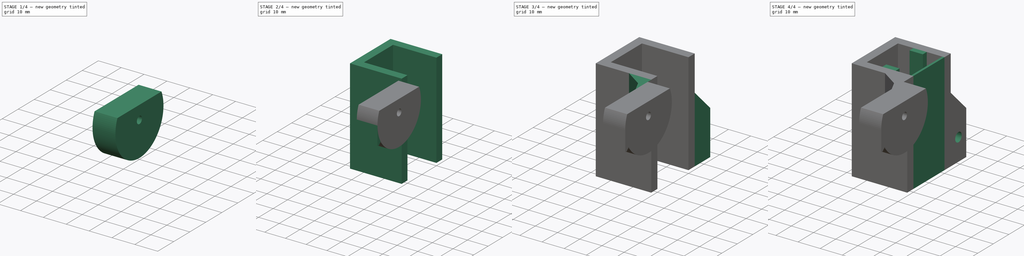
[diagram: build sequence overview — one tinted view per stage of 4, left to right]
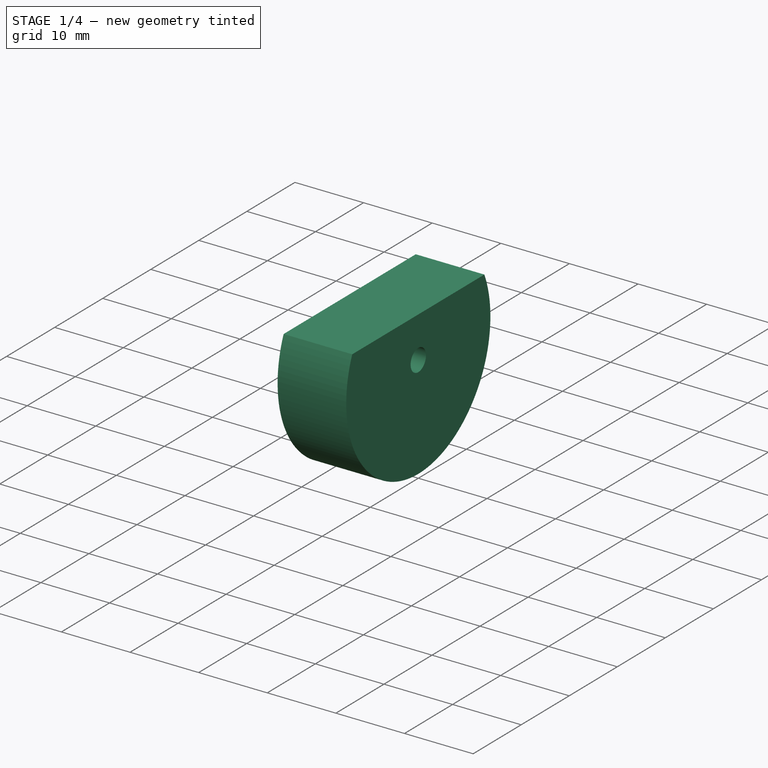
[diagram: stage 1 of 4 — iso view after this stage's code; geometry added in this stage tinted green]
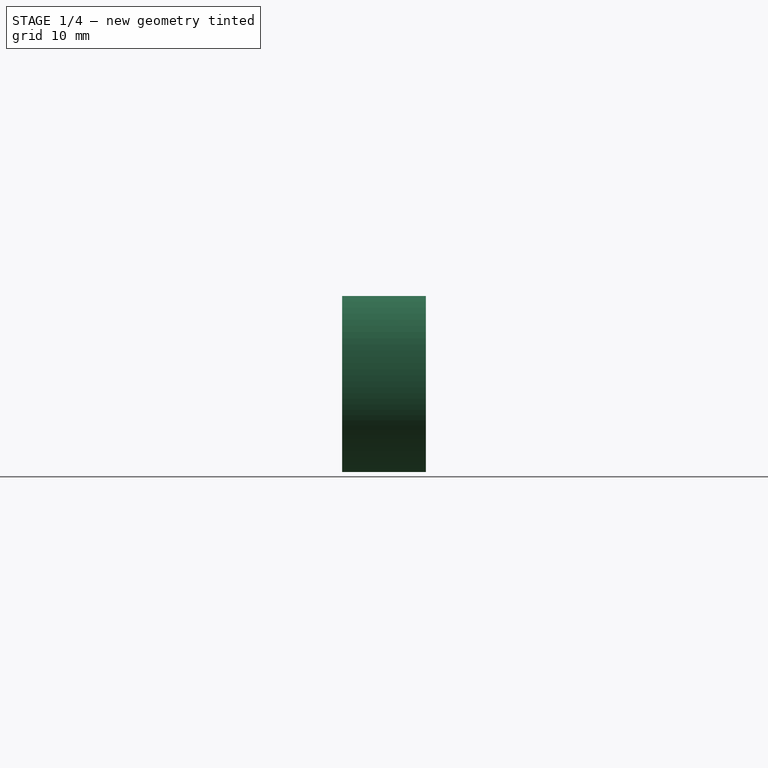
[diagram: stage 1 of 4 — front view after this stage's code; geometry added in this stage tinted green]
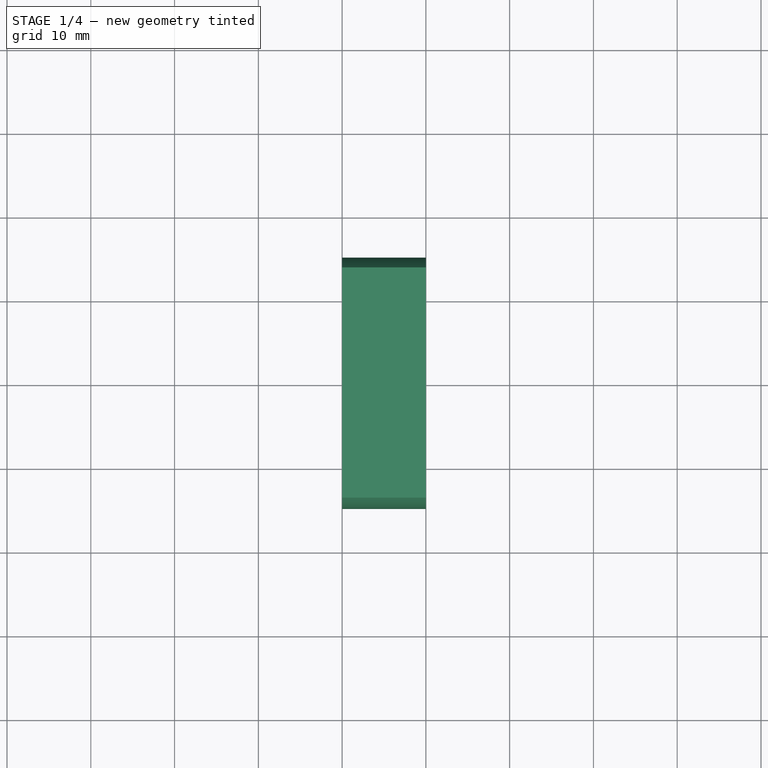
[diagram: stage 1 of 4 — top view after this stage's code; geometry added in this stage tinted green]
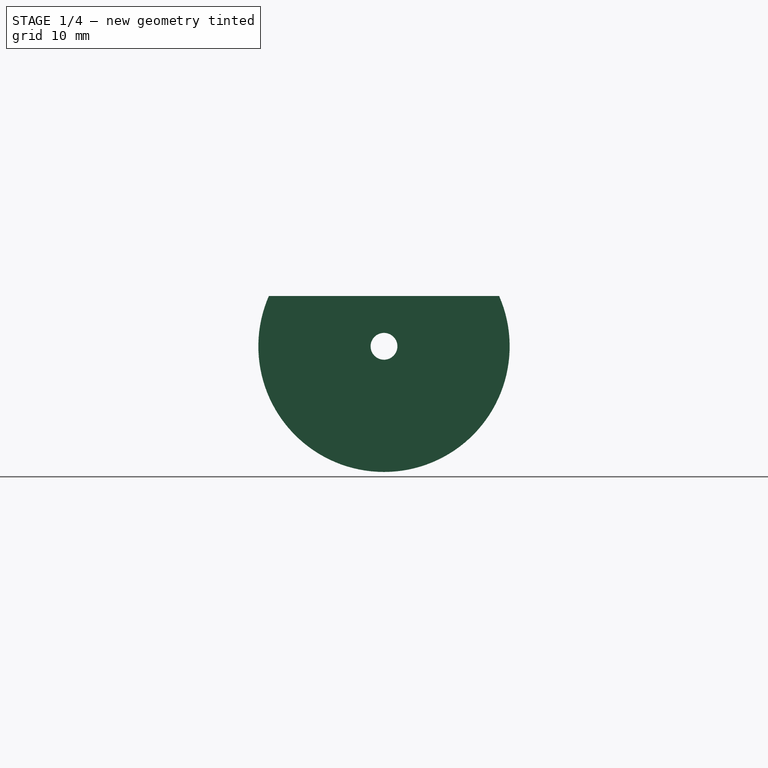
[diagram: stage 1 of 4 — right view after this stage's code; geometry added in this stage tinted green]
FCSTD DOCUMENT  (FreeCAD 0.14R3692 (Git))
Label: hinge-outer
License: CC-BY 3.0
LicenseURL: http://creativecommons.org/licenses/by/3.0/
objects: Sketcher::SketchObject×9, PartDesign::Pocket×5, PartDesign::Pad×4, Part::Feature×4, Part::Box×1, Part::Thickness×1, Part::Cylinder×1, PartDesign::Draft×1, Part::MultiFuse×1, App::DocumentObjectGroup×1
note: 36 computed .brp shape members not serialized (recipe doc carries the construction recipe); baked Part::Feature solids carry a one-line shape summary decoded from their .brp

FEATURE [Part::Cylinder] Cylinder  label="hinge-head-cylinder"
  Angle = 360
  Height = 10
  Placement = pos=(20,-20,-6) rot=(0,1,0;1.5708rad)
  Radius = 15
FEATURE [Sketcher::SketchObject] Sketch  label="hinge-head-cutout-sketch"
  Placement = pos=(20,-20,-6) rot=(0.707107,0,-0.707107;3.14159rad)
  Support = -> Cylinder [Face3]
  sketch-geometry (4):
    g0: LineSegment StartX=-6 StartY=15 StartZ=0 EndX=-16 EndY=15 EndZ=0
    g1: LineSegment StartX=-16 StartY=15 StartZ=0 EndX=-16 EndY=-15 EndZ=0
    g2: LineSegment StartX=-16 StartY=-15 StartZ=0 EndX=-6 EndY=-15 EndZ=0
    g3: LineSegment StartX=-6 StartY=-15 StartZ=0 EndX=-6 EndY=15 EndZ=0
  constraints (12):
    c: Coincident(g0,g1)
    c: Coincident(g1,g2)
    c: Coincident(g2,g3)
    c: Coincident(g3,g0)
    c: Horizontal(g0)
    c: Horizontal(g2)
    c: Vertical(g1)
    c: Vertical(g3)
    c: DistanceY(g3) = 30
    c: DistanceX(g2) = 10
    c: DistanceX(g-1,g2) = -6
    c: DistanceY(g-1,g2) = -15
FEATURE [PartDesign::Pocket] Pocket  label="hinge-head-cutout-pocket"
  Length = 10
  Placement = pos=(20,-20,-6) rot=(0,1,0;1.5708rad)
  Sketch = -> Sketch
  Type = 0
FEATURE [Sketcher::SketchObject] Sketch001  label="hinge-nut-sketch"
  Placement = pos=(20,-20,-6) rot=(0.707107,0,-0.707107;3.14159rad)
  Support = -> Pocket [Face5]
  sketch-geometry (7):
    g0: LineSegment StartX=-2.94449 StartY=-1.7 StartZ=0 EndX=-2.94449 EndY=1.7 EndZ=0
    g1: LineSegment StartX=-2.94449 StartY=1.7 StartZ=0 EndX=0 EndY=3.4 EndZ=0
    g2: LineSegment StartX=0 StartY=3.4 StartZ=0 EndX=2.94449 EndY=1.7 EndZ=0
    g3: LineSegment StartX=2.94449 StartY=1.7 StartZ=0 EndX=2.94449 EndY=-1.7 EndZ=0
    g4: LineSegment StartX=2.94449 StartY=-1.7 StartZ=0 EndX=0 EndY=-3.4 EndZ=0
    g5: LineSegment StartX=0 StartY=-3.4 StartZ=0 EndX=-2.94449 EndY=-1.7 EndZ=0
    g6: Circle [constr] CenterX=0 CenterY=0 CenterZ=0 NormalX=0 NormalY=0 NormalZ=1 Radius=3.4
  constraints (20):
    c: Coincident(g0,g1)
    c: Coincident(g1,g2)
    c: Coincident(g2,g3)
    c: Coincident(g3,g4)
    c: Coincident(g4,g5)
    c: Coincident(g5,g0)
    c: Coincident(g6,g-1)
    c: Radius(g6) = 3.4
    c: PointOnObject(g0,g6)
    c: PointOnObject(g1,g6)
    c: PointOnObject(g2,g6)
    c: PointOnObject(g3,g6)
    c: PointOnObject(g4,g6)
    c: PointOnObject(g0,g6)
    c: Equal(g0,g1)
    c: Equal(g1,g2)
    c: Equal(g2,g3)
    c: Equal(g3,g4)
    c: Equal(g4,g5)
    c: PointOnObject(g1,g-2)
FEATURE [PartDesign::Pocket] Pocket001  label="hinge-nut-pocket"
  Length = 6
  Placement = pos=(20,-20,-6) rot=(0,1,0;1.5708rad)
  Sketch = -> Sketch001
  Type = 0
FEATURE [Sketcher::SketchObject] Sketch002  label="hinge-screw-hole-sketch"
  Placement = pos=(26,-20,-6) rot=(0.707107,0,-0.707107;3.14159rad)
  Support = -> Pocket001 [Face12]
  sketch-geometry (1):
    g0: Circle CenterX=0 CenterY=0 CenterZ=0 NormalX=0 NormalY=0 NormalZ=1 Radius=1.6
  constraints (2):
    c: Radius(g0) = 1.6
    c: Coincident(g0,g-1)
FEATURE [PartDesign::Pocket] Pocket002  label="hinge-screw-hole-pocket"
  Length = 4
  Placement = pos=(20,-20,-6) rot=(0,1,0;1.5708rad)
  Sketch = -> Sketch002
  Type = 0
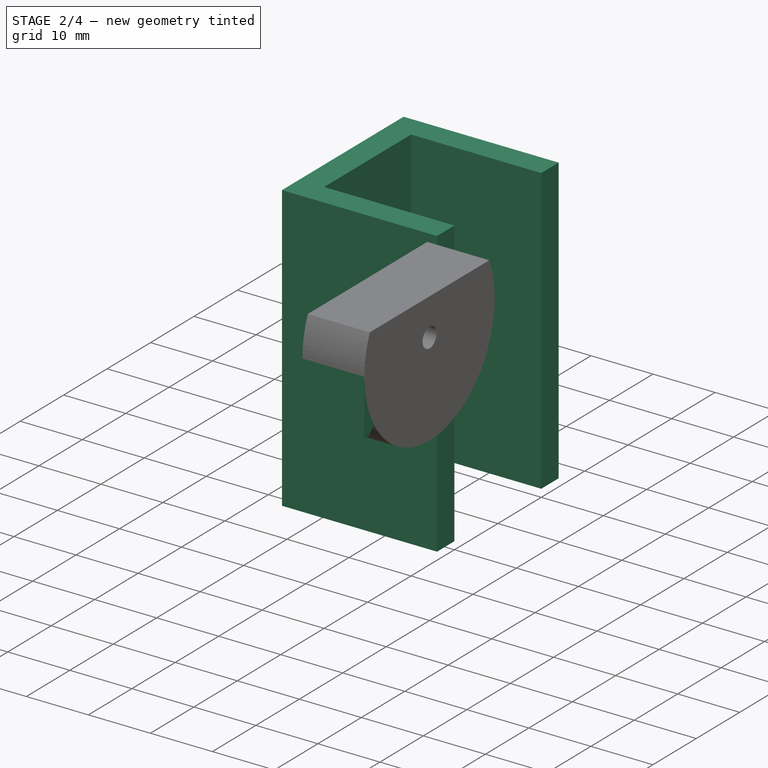
[diagram: stage 2 of 4 — iso view after this stage's code; geometry added in this stage tinted green]
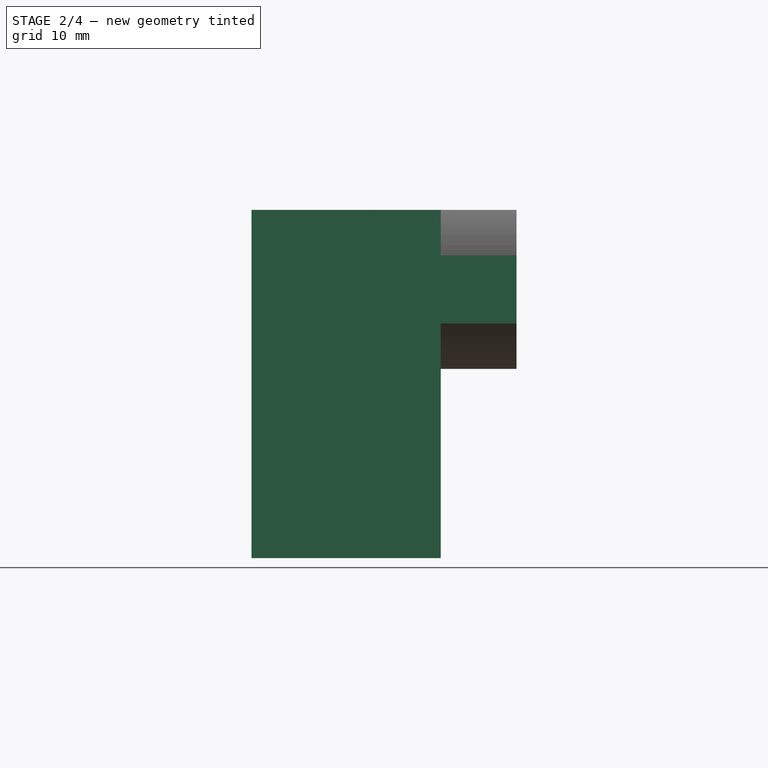
[diagram: stage 2 of 4 — front view after this stage's code; geometry added in this stage tinted green]
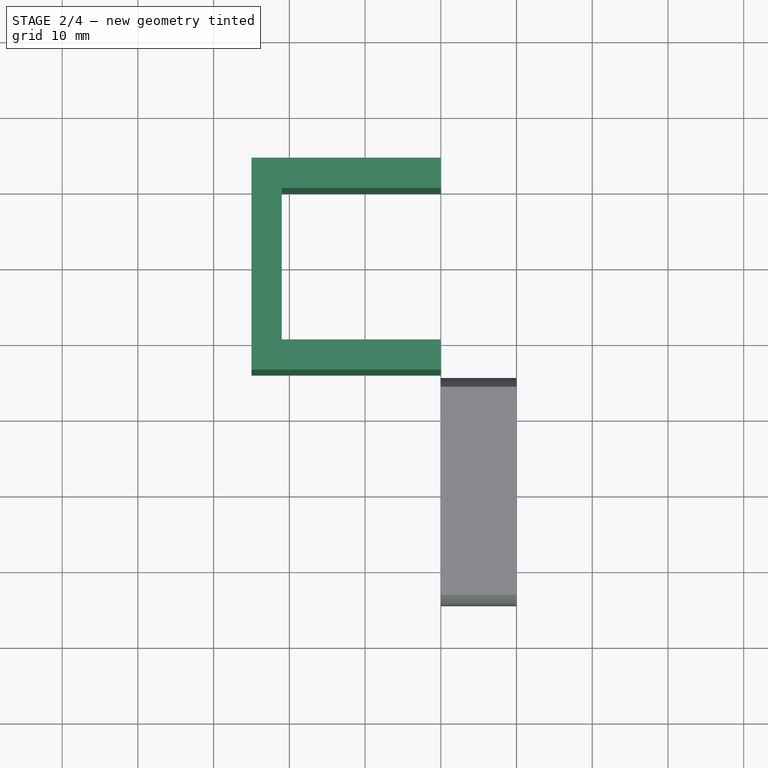
[diagram: stage 2 of 4 — top view after this stage's code; geometry added in this stage tinted green]
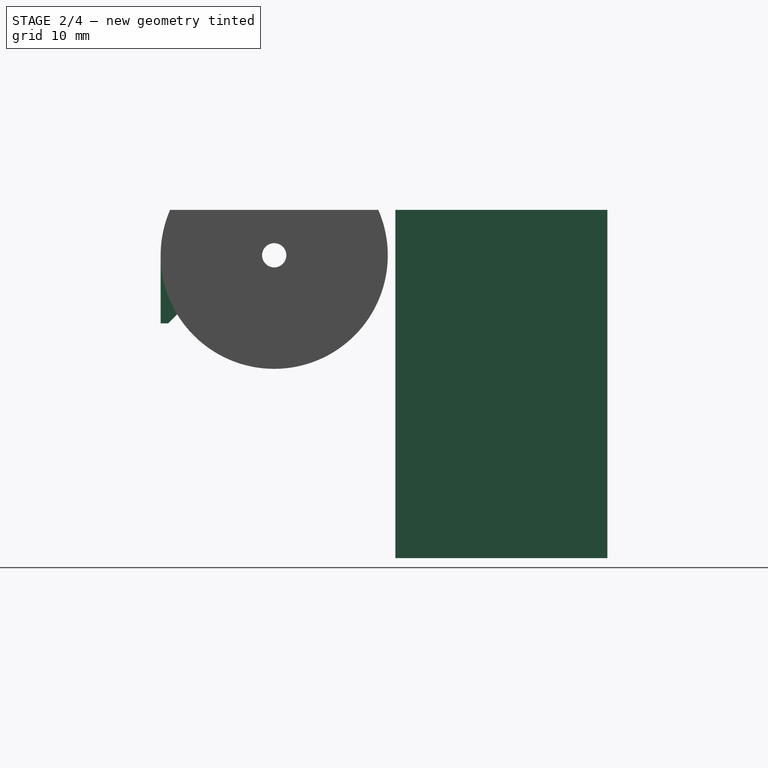
[diagram: stage 2 of 4 — right view after this stage's code; geometry added in this stage tinted green]
FEATURE [Part::Box] Box  label="body-cube"
  Height = 46
  Length = 21
  Placement = pos=(-1,0,-46) rot=(0,0,1;0rad)
  Width = 20
FEATURE [Part::Thickness] Thickness  label="body-thickness"
  Faces = -> Box [Face6,Face2,Face5]
  Intersection = false
  Join = 2
  Mode = 0
  SelfIntersection = false
  Value = 4
FEATURE [Sketcher::SketchObject] Sketch008  label="hinge-stop-sketch"
  Placement = pos=(20,-20,-6) rot=(0.707107,0,-0.707107;3.14159rad)
  Support = -> Pocket002 [Face5]
  sketch-geometry (4):
    g0: LineSegment StartX=0 StartY=15 StartZ=0 EndX=9 EndY=15 EndZ=0
    g1: LineSegment StartX=9 StartY=14 StartZ=0 EndX=0 EndY=5 EndZ=0
    g2: LineSegment StartX=0 StartY=5 StartZ=0 EndX=0 EndY=15 EndZ=0
    g3: LineSegment StartX=9 StartY=15 StartZ=0 EndX=9 EndY=14 EndZ=0
  constraints (12):
    c: Coincident(g1,g2)
    c: Coincident(g2,g0)
    c: Horizontal(g0)
    c: Vertical(g2)
    c: PointOnObject(g0,g-2)
    c: DistanceY(g-1,g0) = 15
    c: Angle(g1,g2) = 0.785398
    c: DistanceY(g-1,g1) = 5
    c: Coincident(g3,g1)
    c: Coincident(g3,g0)
    c: Vertical(g3)
    c: DistanceY(g3) = -1
FEATURE [PartDesign::Pad] Pad003  label="hinge-stop-pad"
  Length = 10
  Length2 = 100
  Placement = pos=(20,-20,-6) rot=(0,1,0;1.5708rad)
  Reversed = true
  Sketch = -> Sketch008
  Type = 0
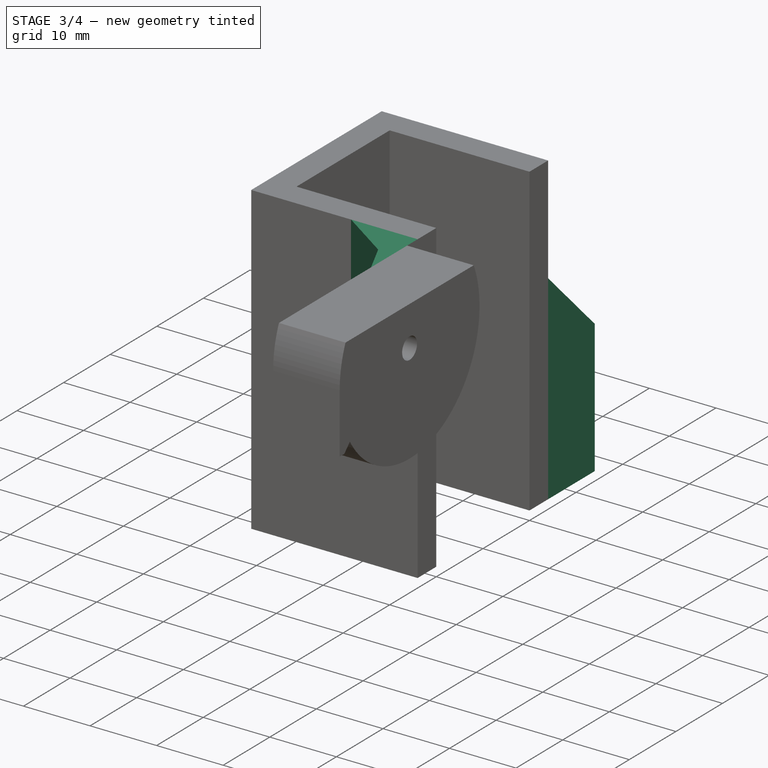
[diagram: stage 3 of 4 — iso view after this stage's code; geometry added in this stage tinted green]
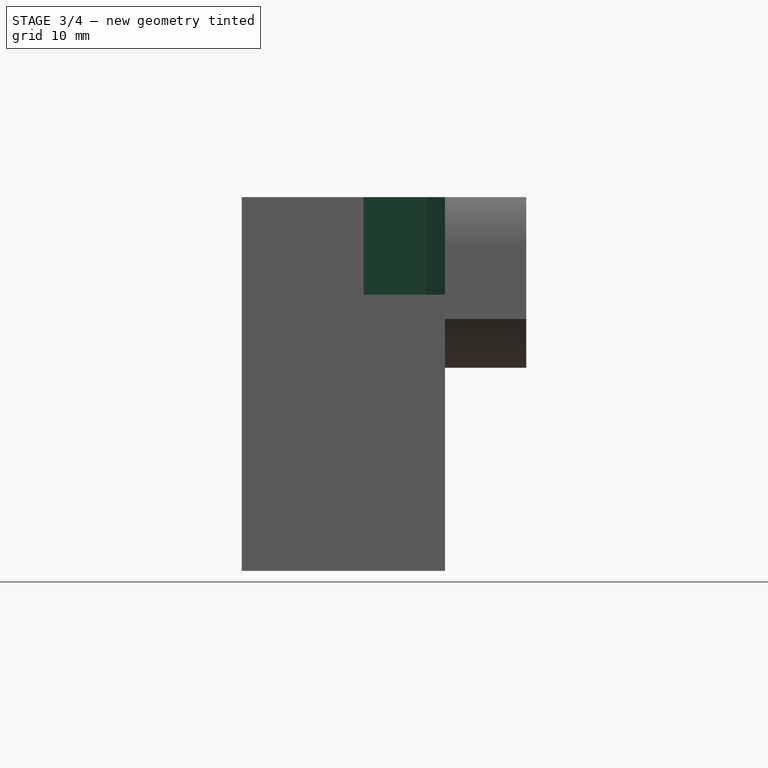
[diagram: stage 3 of 4 — front view after this stage's code; geometry added in this stage tinted green]
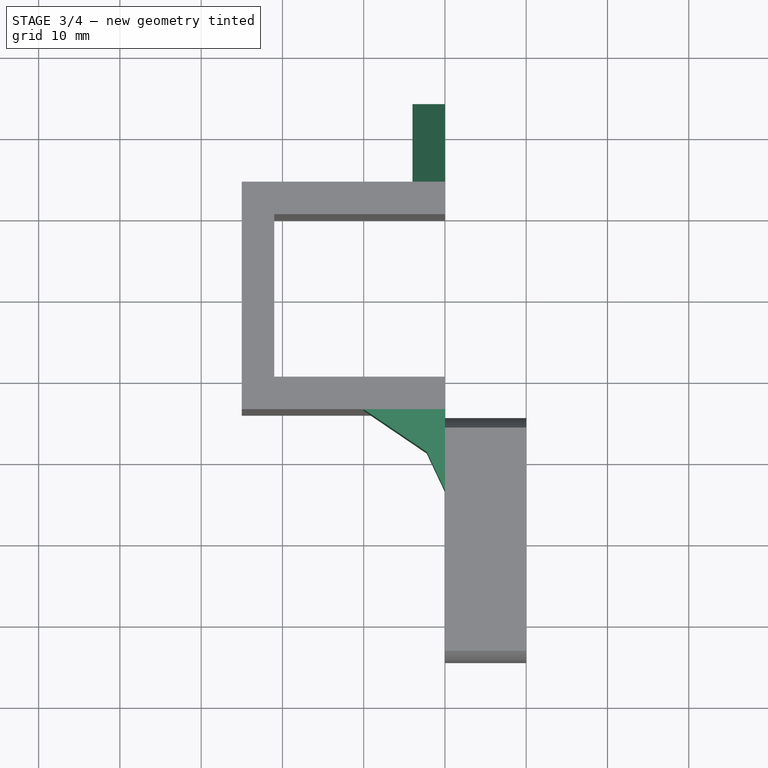
[diagram: stage 3 of 4 — top view after this stage's code; geometry added in this stage tinted green]
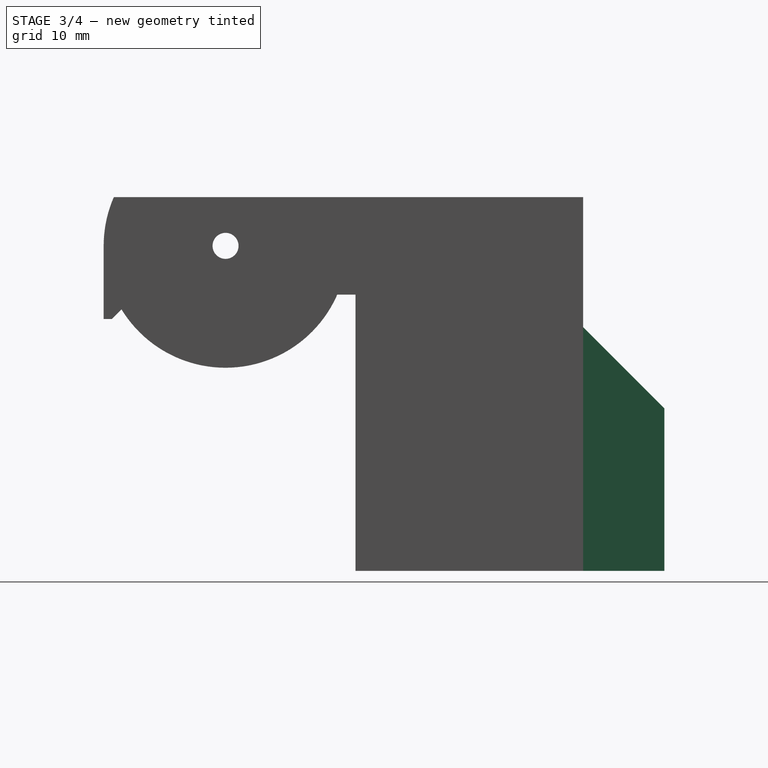
[diagram: stage 3 of 4 — right view after this stage's code; geometry added in this stage tinted green]
FEATURE [Sketcher::SketchObject] Sketch003  label="hinge-body-sketch"
  Support = -> Thickness [Face4]
  sketch-geometry (4):
    g0: LineSegment StartX=20 StartY=-4 StartZ=0 EndX=20 EndY=-14 EndZ=0
    g1: LineSegment StartX=20 StartY=-14 StartZ=0 EndX=17.75 EndY=-9.25 EndZ=0
    g2: LineSegment StartX=17.75 StartY=-9.25 StartZ=0 EndX=10 EndY=-4 EndZ=0
    g3: LineSegment StartX=10 StartY=-4 StartZ=0 EndX=20 EndY=-4 EndZ=0
  constraints (12):
    c: Coincident(g0,g1)
    c: Coincident(g1,g2)
    c: Vertical(g0)
    c: DistanceX(g-1,g0) = 20
    c: DistanceY(g0) = -10
    c: Coincident(g3,g0)
    c: Coincident(g3,g2)
    c: Horizontal(g3)
    c: DistanceY(g-1,g2) = -4
    c: DistanceX(g3) = 10
    c: DistanceX(g1,g0) = 2.25
    c: DistanceY(g1,g0) = 5.25
FEATURE [PartDesign::Pad] Pad  label="hinge-body-pad"
  Length = 12
  Length2 = 100
  Reversed = true
  Sketch = -> Sketch003
  Type = 0
FEATURE [Sketcher::SketchObject] Sketch004  label="slot-left-bottom-fin-sketch"
  Placement = pos=(0,24,0) rot=(0,0.707107,0.707107;3.14159rad)
  Support = -> Pad [Face8]
  sketch-geometry (4):
    g0: LineSegment StartX=-20 StartY=-16 StartZ=0 EndX=-16 EndY=-16 EndZ=0
    g1: LineSegment StartX=-16 StartY=-16 StartZ=0 EndX=-16 EndY=-46 EndZ=0
    g2: LineSegment StartX=-16 StartY=-46 StartZ=0 EndX=-20 EndY=-46 EndZ=0
    g3: LineSegment StartX=-20 StartY=-46 StartZ=0 EndX=-20 EndY=-16 EndZ=0
  constraints (12):
    c: Coincident(g0,g1)
    c: Coincident(g1,g2)
    c: Coincident(g2,g3)
    c: Coincident(g3,g0)
    c: Horizontal(g0)
    c: Horizontal(g2)
    c: Vertical(g1)
    c: Vertical(g3)
    c: DistanceX(g2) = -4
    c: DistanceY(g3) = 30
    c: DistanceX(g-1,g2) = -20
    c: DistanceY(g-1,g2) = -46
FEATURE [PartDesign::Pad] Pad001  label="slot-left-bottom-fin-pad"
  Length = 10
  Length2 = 100
  Sketch = -> Sketch004
  Type = 0
FEATURE [PartDesign::Draft] Draft  label="slot-left-bottom-fin-draft"
  Angle = 45
  Base = -> Pad001 [Face16]
  NeutralPlane = -> Pad001 [Face8]
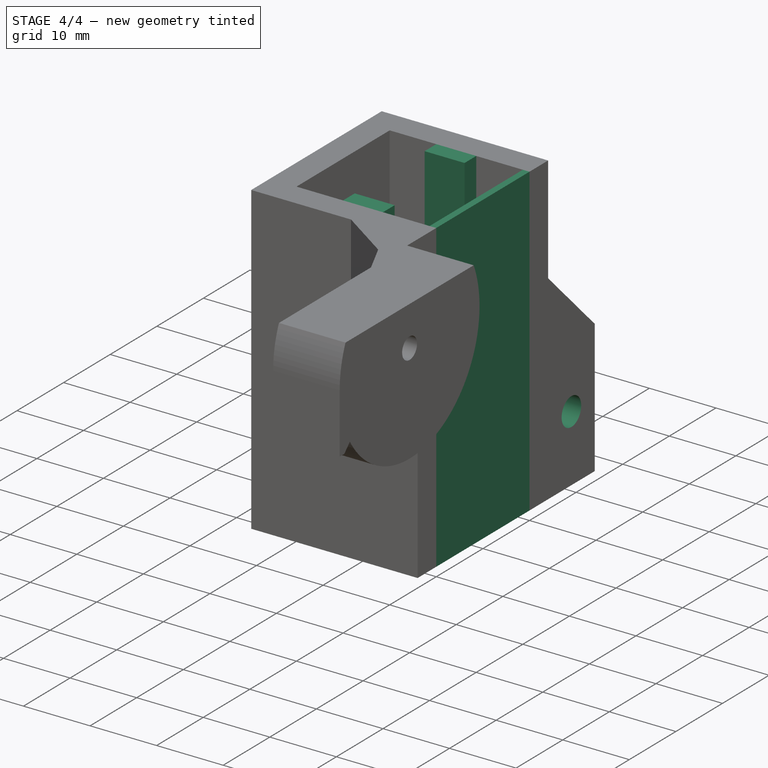
[diagram: stage 4 of 4 — iso view after this stage's code; geometry added in this stage tinted green]
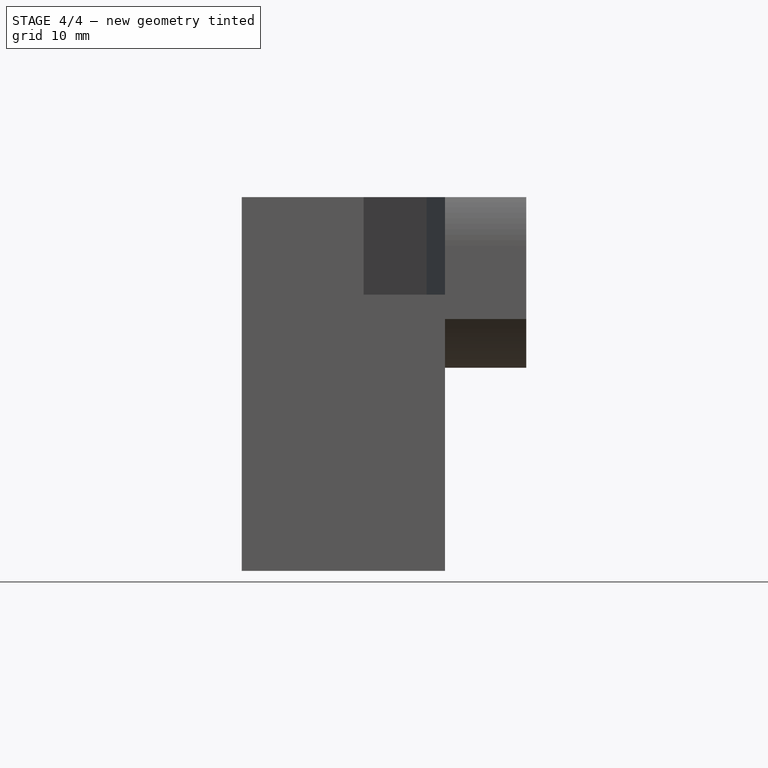
[diagram: stage 4 of 4 — front view after this stage's code; geometry added in this stage tinted green]
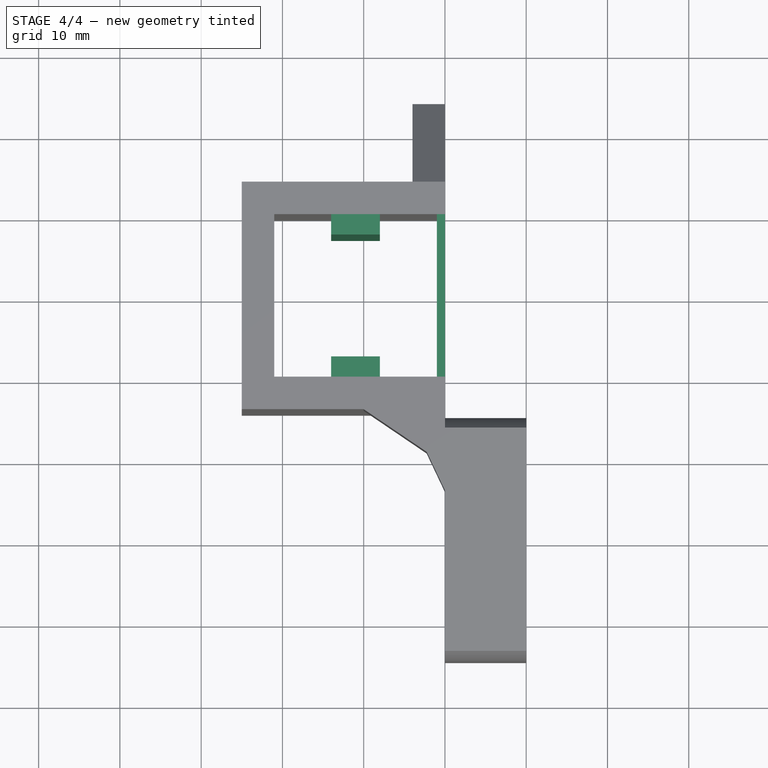
[diagram: stage 4 of 4 — top view after this stage's code; geometry added in this stage tinted green]
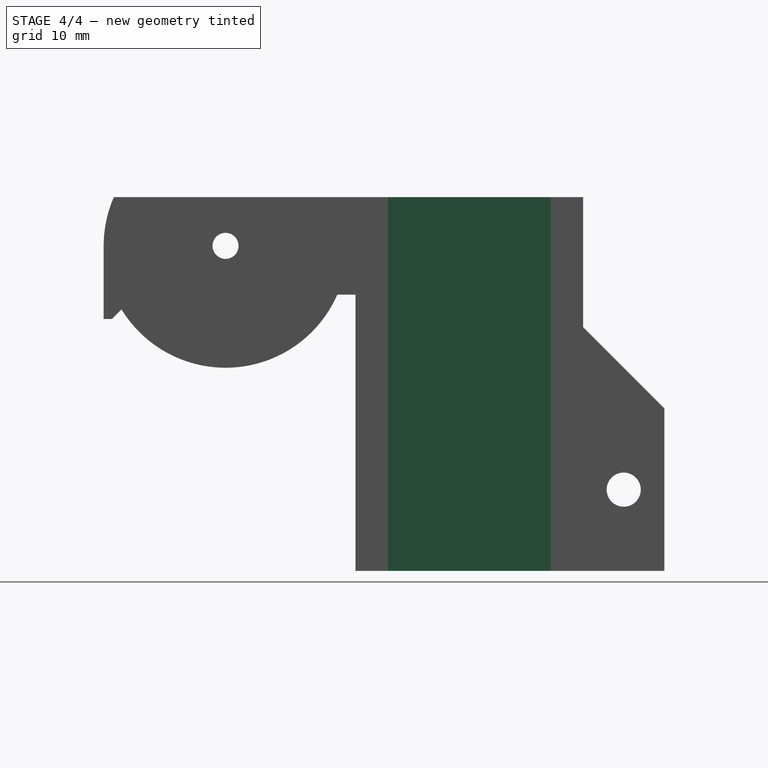
[diagram: stage 4 of 4 — right view after this stage's code; geometry added in this stage tinted green]
FEATURE [Sketcher::SketchObject] Sketch005  label="slot-left-guides-sketch"
  Support = -> Draft [Face3]
  sketch-geometry (12):
    g0: LineSegment StartX=6 StartY=20 StartZ=0 EndX=12 EndY=20 EndZ=0
    g1: LineSegment StartX=12 StartY=20 StartZ=0 EndX=12 EndY=17.5 EndZ=0
    g2: LineSegment StartX=12 StartY=17.5 StartZ=0 EndX=6 EndY=17.5 EndZ=0
    g3: LineSegment StartX=6 StartY=17.5 StartZ=0 EndX=6 EndY=20 EndZ=0
    g4: LineSegment StartX=6 StartY=2.5 StartZ=0 EndX=12 EndY=2.5 EndZ=0
    g5: LineSegment StartX=12 StartY=2.5 StartZ=0 EndX=12 EndY=0 EndZ=0
    g6: LineSegment StartX=12 StartY=0 StartZ=0 EndX=6 EndY=0 EndZ=0
    g7: LineSegment StartX=6 StartY=0 StartZ=0 EndX=6 EndY=2.5 EndZ=0
    g8: LineSegment StartX=19 StartY=20 StartZ=0 EndX=20 EndY=20 EndZ=0
    g9: LineSegment StartX=20 StartY=20 StartZ=0 EndX=20 EndY=0 EndZ=0
    g10: LineSegment StartX=20 StartY=0 StartZ=0 EndX=19 EndY=0 EndZ=0
    g11: LineSegment StartX=19 StartY=0 StartZ=0 EndX=19 EndY=20 EndZ=0
  constraints (36):
    c: Coincident(g0,g1)
    c: Coincident(g1,g2)
    c: Coincident(g2,g3)
    c: Coincident(g3,g0)
    c: Horizontal(g0)
    c: Horizontal(g2)
    c: Vertical(g1)
    c: Vertical(g3)
    c: Coincident(g4,g5)
    c: Coincident(g5,g6)
    c: Coincident(g6,g7)
    c: Coincident(g7,g4)
    c: Horizontal(g4)
    c: Horizontal(g6)
    c: Vertical(g5)
    c: Vertical(g7)
    c: DistanceX(g4) = 6
    c: DistanceY(g5) = -2.5
    c: Equal(g4,g2)
    c: Equal(g5,g1)
    c: PointOnObject(g6,g-1)
    c: DistanceX(g-1,g6) = 6
    c: DistanceX(g-1,g0) = 6
    c: DistanceY(g-1,g0) = 20
    c: Coincident(g8,g9)
    c: Coincident(g9,g10)
    c: Coincident(g10,g11)
    c: Coincident(g11,g8)
    c: Horizontal(g8)
    c: Horizontal(g10)
    c: Vertical(g9)
    c: Vertical(g11)
    c: DistanceX(g10) = -1
    c: DistanceY(g9) = -20
    c: DistanceX(g-1,g10) = 19
    c: PointOnObject(g10,g-1)
FEATURE [PartDesign::Pad] Pad002  label="slot-left-guides-pad"
  Length = 46
  Length2 = 100
  Reversed = true
  Sketch = -> Sketch005
  Type = 0
FEATURE [Sketcher::SketchObject] Sketch006  label="slot-left-screw-hole-sketch"
  Placement = pos=(-5,0,0) rot=(0.57735,-0.57735,-0.57735;2.0944rad)
  Support = -> Pad002 [Face16]
  sketch-geometry (1):
    g0: Circle CenterX=-10 CenterY=-23 CenterZ=0 NormalX=0 NormalY=0 NormalZ=1 Radius=2.1
  constraints (3):
    c: Radius(g0) = 2.1
    c: DistanceX(g-1,g0) = -10
    c: DistanceY(g-1,g0) = -23
FEATURE [PartDesign::Pocket] Pocket003  label="slot-left-screw-hole-pocket"
  Length = 4
  Sketch = -> Sketch006
  Type = 0
FEATURE [Sketcher::SketchObject] Sketch007  label="slot-left-bottom-screw-hole-sketch"
  Placement = pos=(20,0,0) rot=(0.57735,0.57735,0.57735;2.0944rad)
  Support = -> Pocket003 [Face31]
  sketch-geometry (1):
    g0: Circle CenterX=29 CenterY=-36 CenterZ=0 NormalX=0 NormalY=0 NormalZ=1 Radius=2.1
  constraints (3):
    c: Radius(g0) = 2.1
    c: DistanceY(g-1,g0) = -36
    c: DistanceX(g-1,g0) = 29
FEATURE [PartDesign::Pocket] Pocket004  label="slot-left-bottom-screw-hole-pocket"
  Length = 4
  Sketch = -> Sketch007
  Type = 0
FEATURE [Part::MultiFuse] Fusion  label="body-hinge-fusion"
  Shapes = -> [Pad003,Pocket004]
FEATURE [Part::Feature] Part__Feature  label="extrusion-p20n6b-300-bottom-left"
  Placement = pos=(30,-176,-36) rot=(-1,0,0;1.5708rad)
  shape: bbox 20 x 300 x 20 mm, 154 faces (baked)
FEATURE [Part::Feature] Part__Feature001  label="extrusion-p20n6b-300-left"
  Placement = pos=(9,10,-46) rot=(0,0,1;0rad)
  shape: bbox 20 x 20 x 300 mm, 154 faces (baked)
FEATURE [Part::Feature] Part__Feature002  label="hinge-inner-left"
  Placement = pos=(20,-14,-46) rot=(0,0,1;0rad)
  shape: bbox 23 x 28 x 48 mm, 30 faces (baked)
FEATURE [App::DocumentObjectGroup] Grupo  label="aux"
  Group = -> [Part__Feature002,Part__Feature,Part__Feature001]
FEATURE [Part::Feature] Fusion002  label="hinge-outer-left"
  shape: bbox 35 x 69 x 46 mm, 41 faces (baked)
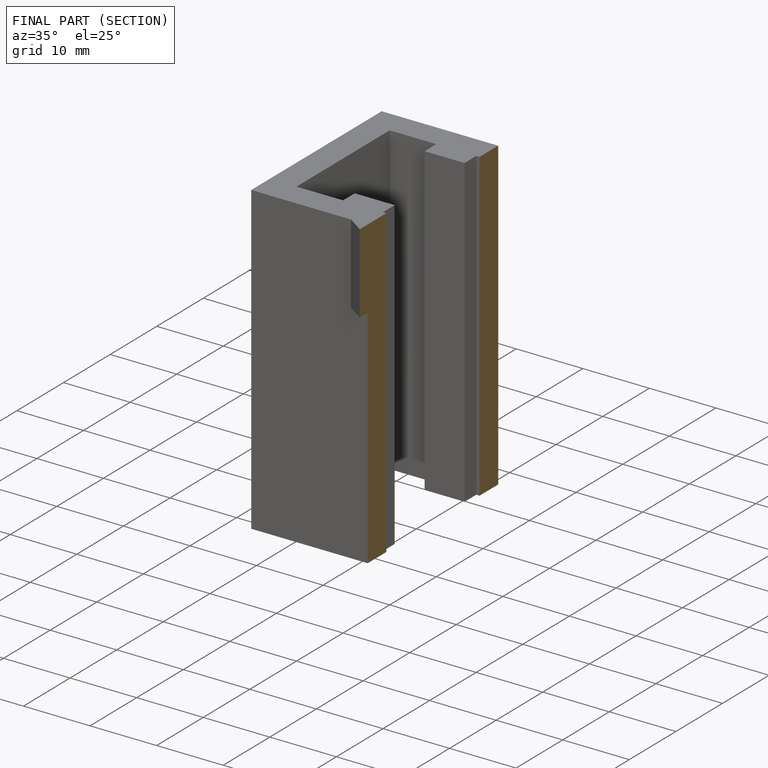
[diagram: finished part — half-section view (interior)]
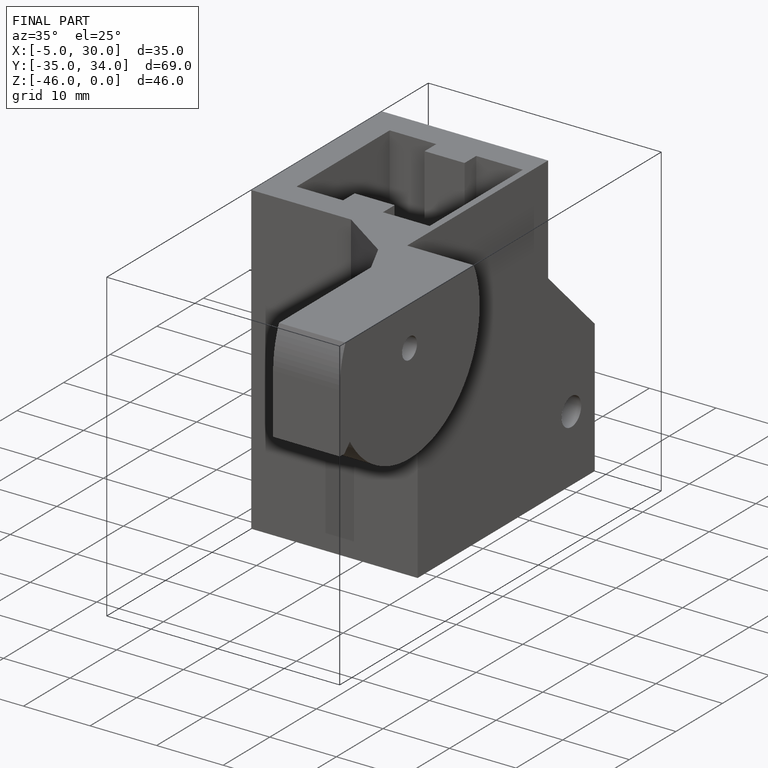
[diagram: finished part — iso view with bounding-box wireframe]
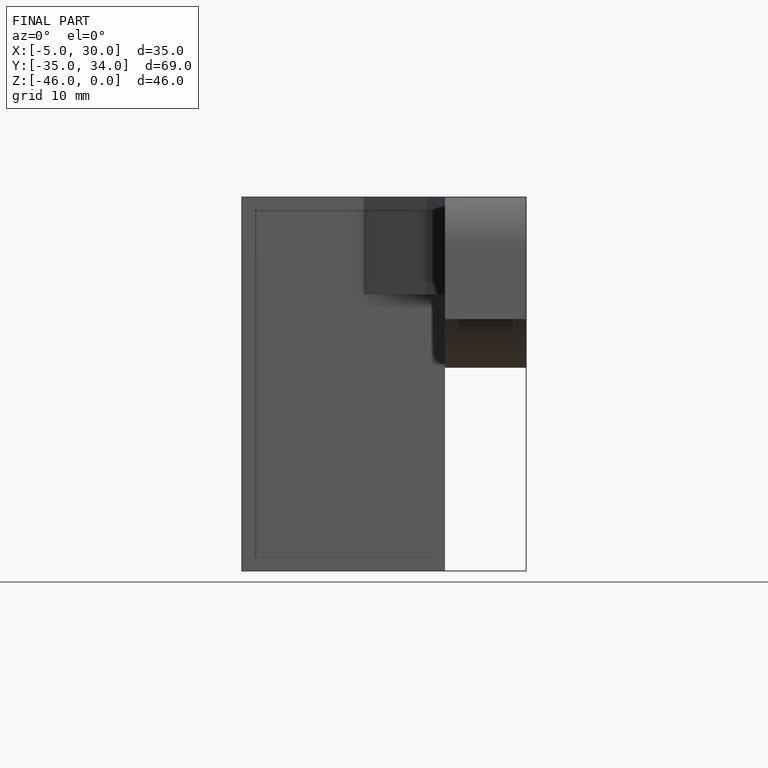
[diagram: finished part — front view with bounding-box wireframe]
